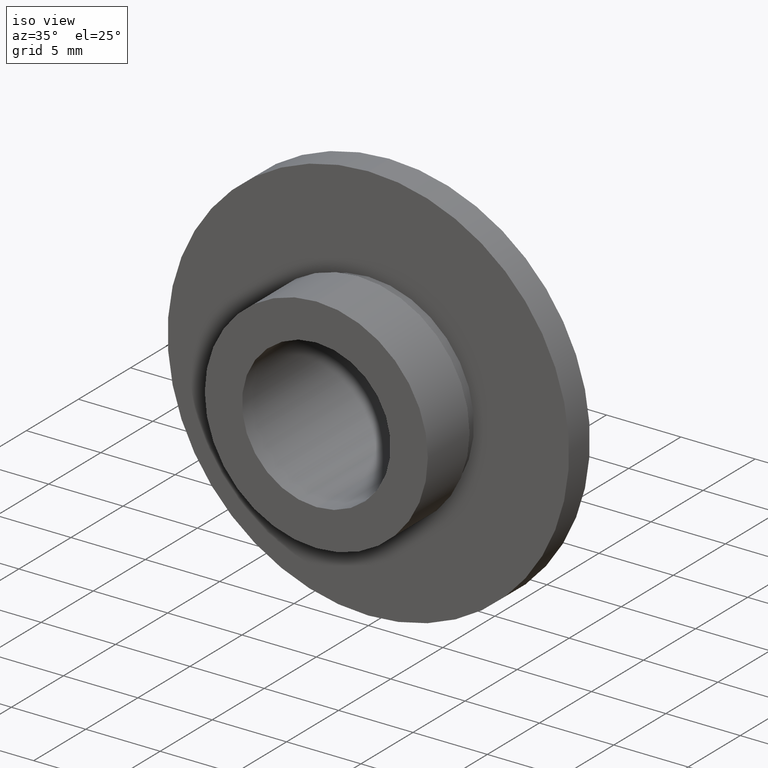
[diagram: clean part render]
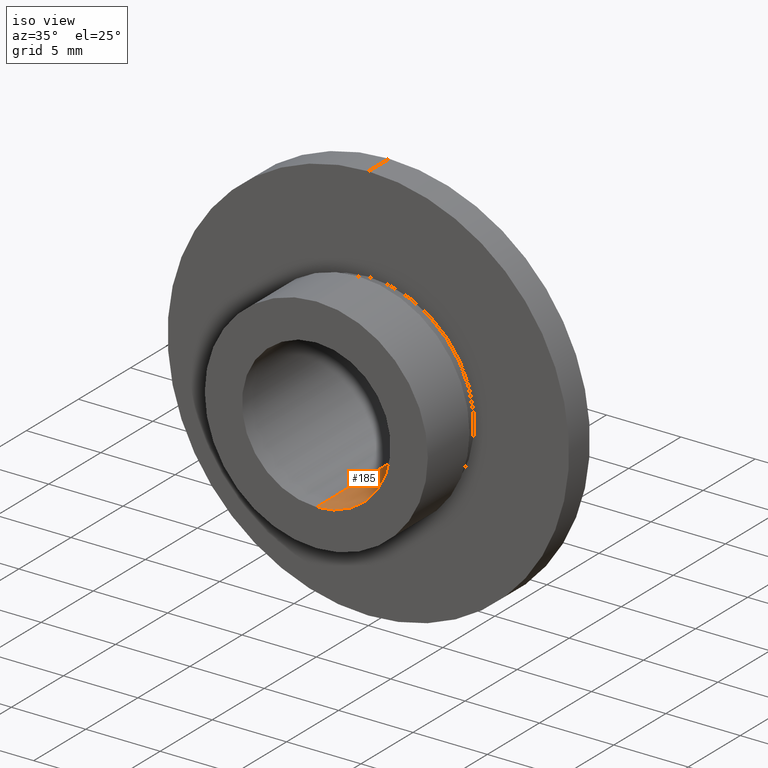
[diagram: same view with one face highlighted and labeled with its STEP entity id]
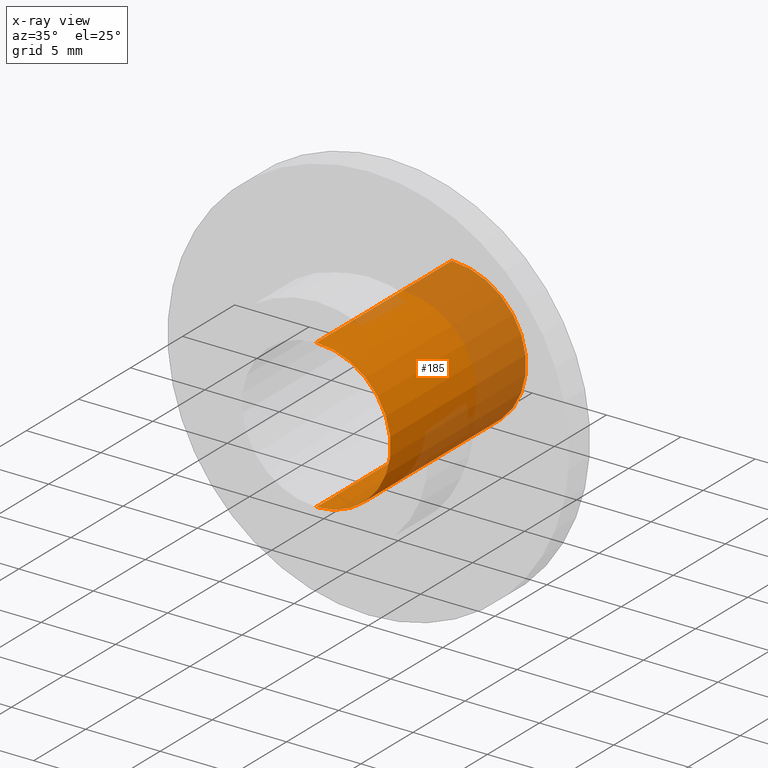
[diagram: x-ray of the same camera — body ghosted, the highlighted face saturated]
A machine part, iso view. The second image highlights one B-rep face of the part: STEP entity #185.
The next image is the same camera in x-ray: the body ghosted, the highlighted face saturated — about 43% of this face is hidden behind the body in this view.
In plain terms, the highlighted cylindrical surface (partial cylindrical patch) has radius 5 mm, axis along (-0, -1, -0).
Its self-contained STEP definition (entity closure, byte-faithful):
#18 = VECTOR ( 'NONE', #60, 1000.000000000000000 ) ;
#34 = AXIS2_PLACEMENT_3D ( 'NONE', #535, #219, #582 ) ;
#41 = CARTESIAN_POINT ( 'NONE',  ( 0.0000000000000000000, 13.00000000000000200, 0.0000000000000000000 ) ) ;
#60 = DIRECTION ( 'NONE',  ( -0.0000000000000000000, -1.000000000000000000, -0.0000000000000000000 ) ) ;
#75 = CIRCLE ( 'NONE', #534, 5.000000000000000000 ) ;
#78 = CARTESIAN_POINT ( 'NONE',  ( 0.0000000000000000000, 2.155083489784135800E-015, 0.0000000000000000000 ) ) ;
#111 = CARTESIAN_POINT ( 'NONE',  ( 6.123233995736765300E-016, 13.00000000000000200, 4.999999999999999100 ) ) ;
#123 = DIRECTION ( 'NONE',  ( 0.0000000000000000000, 0.0000000000000000000, -1.000000000000000000 ) ) ;
#131 = DIRECTION ( 'NONE',  ( -0.0000000000000000000, -1.000000000000000000, -0.0000000000000000000 ) ) ;
#144 = CARTESIAN_POINT ( 'NONE',  ( 0.0000000000000000000, 0.0000000000000000000, -4.999999999999999100 ) ) ;
#153 = VERTEX_POINT ( 'NONE', #316 ) ;
#168 = ORIENTED_EDGE ( 'NONE', *, *, #333, .F. ) ;
#185 = ADVANCED_FACE ( 'NONE', ( #549 ), #501, .F. ) ;
#189 = CARTESIAN_POINT ( 'NONE',  ( 0.0000000000000000000, 2.155083489784135800E-015, -5.000000000000000000 ) ) ;
#219 = DIRECTION ( 'NONE',  ( -0.0000000000000000000, -1.000000000000000000, -0.0000000000000000000 ) ) ;
#260 = CIRCLE ( 'NONE', #319, 4.999999999999999100 ) ;
#276 = ORIENTED_EDGE ( 'NONE', *, *, #476, .T. ) ;
#279 = DIRECTION ( 'NONE',  ( 0.0000000000000000000, 0.0000000000000000000, -1.000000000000000000 ) ) ;
#314 = LINE ( 'NONE', #144, #398 ) ;
#316 = CARTESIAN_POINT ( 'NONE',  ( 0.0000000000000000000, 13.00000000000000200, -4.999999999999999100 ) ) ;
#319 = AXIS2_PLACEMENT_3D ( 'NONE', #41, #131, #123 ) ;
#333 = EDGE_CURVE ( 'NONE', #153, #644, #260, .T. ) ;
#389 = VERTEX_POINT ( 'NONE', #495 ) ;
#398 = VECTOR ( 'NONE', #664, 1000.000000000000000 ) ;
#432 = EDGE_CURVE ( 'NONE', #466, #389, #75, .T. ) ;
#466 = VERTEX_POINT ( 'NONE', #189 ) ;
#476 = EDGE_CURVE ( 'NONE', #153, #466, #314, .T. ) ;
#495 = CARTESIAN_POINT ( 'NONE',  ( 6.123233995736766300E-016, 2.155083489784135800E-015, 5.000000000000000000 ) ) ;
#501 = CYLINDRICAL_SURFACE ( 'NONE', #34, 4.999999999999999100 ) ;
#512 = CARTESIAN_POINT ( 'NONE',  ( 6.123233995736765300E-016, 0.0000000000000000000, 4.999999999999999100 ) ) ;
#529 = ORIENTED_EDGE ( 'NONE', *, *, #609, .F. ) ;
#534 = AXIS2_PLACEMENT_3D ( 'NONE', #78, #593, #279 ) ;
#535 = CARTESIAN_POINT ( 'NONE',  ( 0.0000000000000000000, 0.0000000000000000000, 0.0000000000000000000 ) ) ;
#545 = EDGE_LOOP ( 'NONE', ( #529, #168, #276, #645 ) ) ;
#549 = FACE_OUTER_BOUND ( 'NONE', #545, .T. ) ;
#582 = DIRECTION ( 'NONE',  ( 0.0000000000000000000, 0.0000000000000000000, -1.000000000000000000 ) ) ;
#593 = DIRECTION ( 'NONE',  ( -0.0000000000000000000, -1.000000000000000000, -0.0000000000000000000 ) ) ;
#609 = EDGE_CURVE ( 'NONE', #644, #389, #634, .T. ) ;
#634 = LINE ( 'NONE', #512, #18 ) ;
#644 = VERTEX_POINT ( 'NONE', #111 ) ;
#645 = ORIENTED_EDGE ( 'NONE', *, *, #432, .T. ) ;
#664 = DIRECTION ( 'NONE',  ( -0.0000000000000000000, -1.000000000000000000, -0.0000000000000000000 ) ) ;